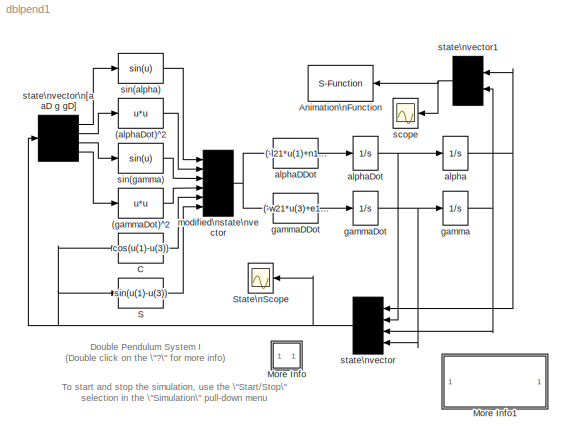
MODEL dblpend1
KIND model
CONFIG PreLoadFcn = l21=5;w21=5;n1=1/4;e1=1/2;
BLOCK [Fcn] (alphaDot)^2
  Expr = u*u
BLOCK [Fcn] (gammaDot)^2
  Expr = u*u
BLOCK [S-Function] Animation\nFunction
  DeleteFcn = if ~isempty(findobj('type','figure','name','dblpend1 Animation'));close('dblpend1 Animation'); end;
  FunctionName = pndanim2
  Parameters = 0.05
  Ports = [1]
BLOCK [Fcn] C
  Expr = cos(u(1)-u(3))
BLOCK [SubSystem] More Info
  MaskDisplay = disp('?')
  MaskIconFrame = on
  MaskIconOpaque = on
  MaskIconRotate = none
  MaskIconUnits = autoscale
  MinAlgLoopOccurrences = off
  Ports = []
  PropExecContextAcrossSSBoundary = on
  RTWSystemCode = Auto
  TreatAsAtomicUnit = off
BLOCK [SubSystem] More Info1
  MaskDisplay = disp('Double click\\nhere for\\nSIMULINK Help')
  MaskIconFrame = on
  MaskIconOpaque = on
  MaskIconRotate = none
  MaskIconUnits = autoscale
  MinAlgLoopOccurrences = off
  OpenFcn = simcad(bdroot)
  Ports = []
  PropExecContextAcrossSSBoundary = on
  RTWSystemCode = Auto
  TreatAsAtomicUnit = off
BLOCK [Fcn] S
  Expr = sin(u(1)-u(3))
BLOCK [Scope] State\nScope
  DataFormat = Array
  NumInputPorts = 1
  Ports = [1]
  SaveName = ScopeData2
  TickLabels = on
  TimeRange = 40.000000
  YMax = 2.000000
  YMin = -2.000000
BLOCK [Integrator] alpha
  InitialCondition = 100*(pi/180)
  Ports = [1, 1]
BLOCK [Fcn] alphaDDot
  Expr = (-l21*u(1)+n1*w21*u(5)*u(3)-n1*e1*u(5)*u(6)*u(2)-n1*u(6)*u(4))/(1-n1*e1*u(5)*u(5))
BLOCK [Integrator] alphaDot
  Ports = [1, 1]
BLOCK [Integrator] gamma
  InitialCondition = 0*(pi/180)
  Ports = [1, 1]
BLOCK [Fcn] gammaDDot
  Expr = (-w21*u(3)+e1*l21*u(5)*u(1)+n1*e1*u(5)*u(6)*u(4)+e1*u(6)*u(2))/(1-n1*e1*u(5)*u(5))
BLOCK [Integrator] gammaDot
  Ports = [1, 1]
BLOCK [Mux] modified\nstate\nvector
  Inputs = 6
  Ports = [6, 1]
BLOCK [Scope] scope
  DataFormat = Array
  NumInputPorts = 1
  Ports = [1]
  TickLabels = on
  TimeRange = 32.000000
  YMax = 2.000000
  YMin = -2.000000
BLOCK [Fcn] sin(alpha)
  Expr = sin(u)
BLOCK [Fcn] sin(gamma)
  Expr = sin(u)
BLOCK [Mux] state\nvector
  Ports = [4, 1]
BLOCK [Mux] state\nvector1
  Inputs = 2
  Ports = [2, 1]
BLOCK [Demux] state\nvector\n[a aD g gD]
  Ports = [1, 4]
ANNOTATION (root): Double Pendulum System I\n(Double click on the \"?\" for more info)
ANNOTATION (root): To start and stop the simulation, use the \"Start/Stop\"\nselection in the \"Simulation\" pull-down menu
ANNOTATION More Info: Associated with the demo is an animation function that\nwill automatically open a figure window and display to it.
ANNOTATION More Info: This system models a double pendulum system where\nthe rest state has both pendulums hanging vertically.
ANNOTATION More Info: Try experimenting with different initial conditions for\nalpha and gamma to see the unusal coupling effects.
ANNOTATION More Info1: Associated with the demo is an animation function that\nwill automatically open a figure window and display to it.
ANNOTATION More Info1: This system models a double pendulum system where\nthe rest state has both pendulums hanging vertically.
ANNOTATION More Info1: Try experimenting with different initial conditions for\nalpha and gamma to see the unusal coupling effects.
LINE (alphaDot)^2:1 -> modified\nstate\nvector:2
LINE (gammaDot)^2:1 -> modified\nstate\nvector:4
LINE C:1 -> modified\nstate\nvector:5
LINE S:1 -> modified\nstate\nvector:6
NET alpha:1 -> state\nvector1:1, state\nvector:1
LINE alphaDDot:1 -> alphaDot:1
NET alphaDot:1 -> alpha:1, state\nvector:2
NET gamma:1 -> state\nvector1:2, state\nvector:3
LINE gammaDDot:1 -> gammaDot:1
NET gammaDot:1 -> gamma:1, state\nvector:4
NET modified\nstate\nvector:1 -> alphaDDot:1, gammaDDot:1
LINE sin(alpha):1 -> modified\nstate\nvector:1
LINE sin(gamma):1 -> modified\nstate\nvector:3
NET state\nvector1:1 -> Animation\nFunction:1, scope:1
NET state\nvector:1 -> C:1, S:1, State\nScope:1, state\nvector\n[a aD g gD]:1
LINE state\nvector\n[a aD g gD]:1 -> sin(alpha):1
LINE state\nvector\n[a aD g gD]:2 -> (alphaDot)^2:1
LINE state\nvector\n[a aD g gD]:3 -> sin(gamma):1
LINE state\nvector\n[a aD g gD]:4 -> (gammaDot)^2:1
note: NET lines group one-source signal fan-out (src -> all destinations, sorted); 1:1 wires keep LINE
